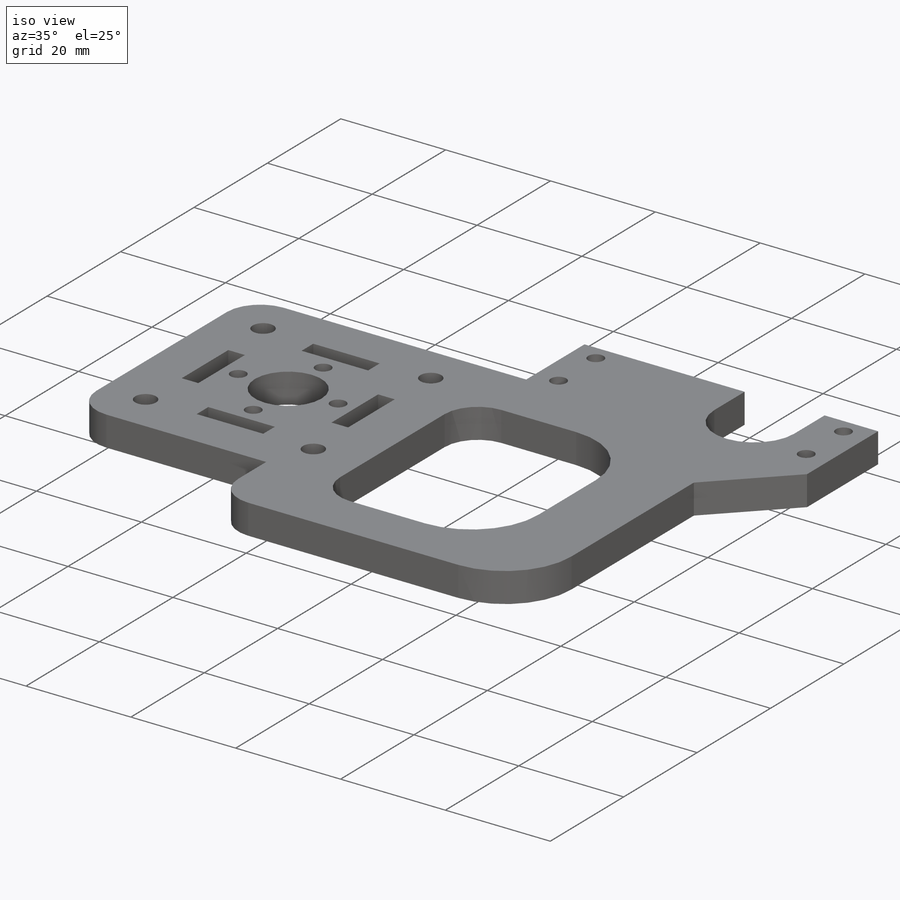
[diagram: iso view]
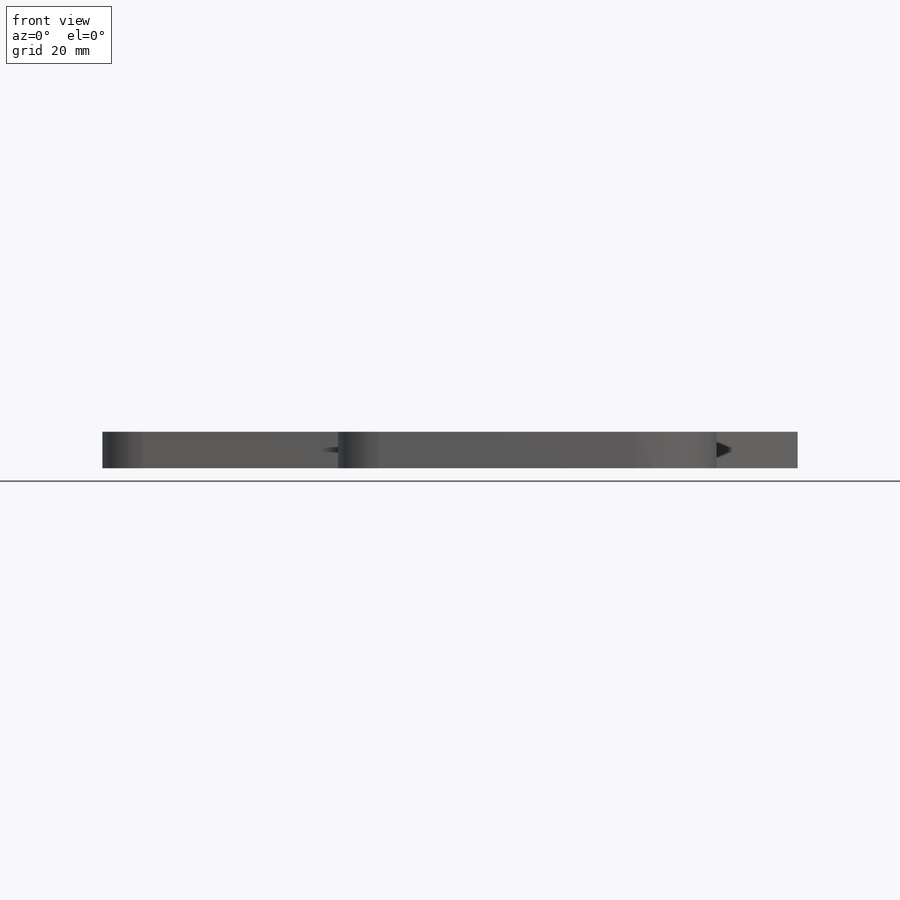
[diagram: front view]
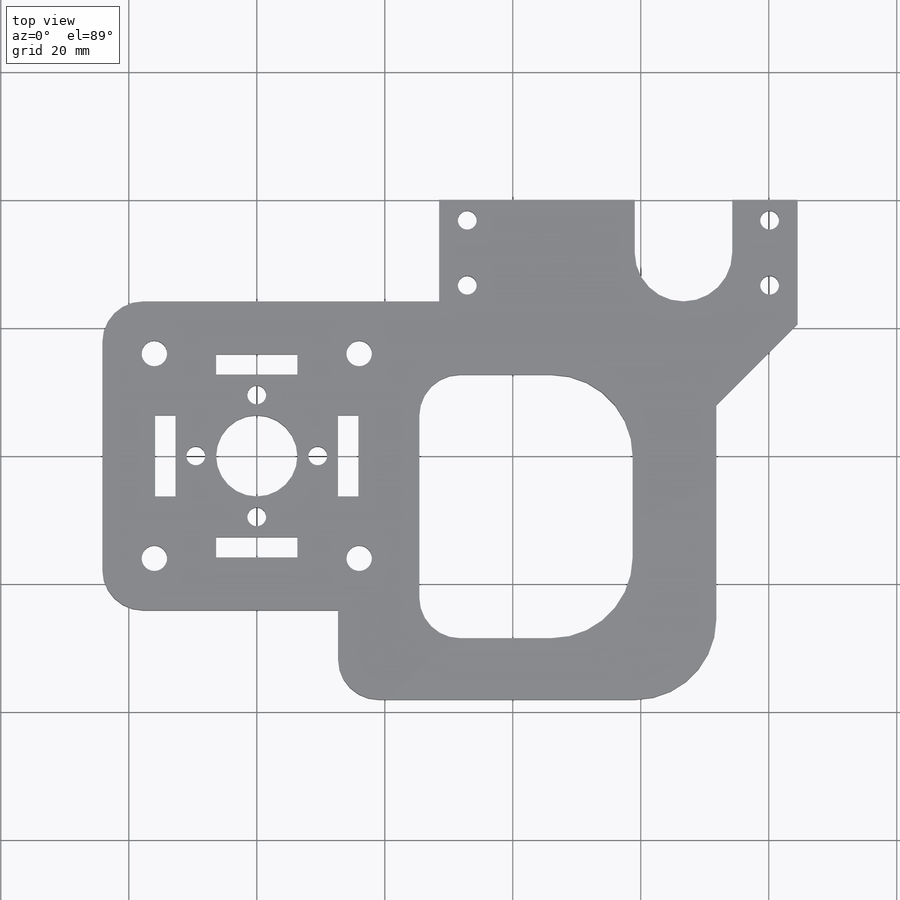
[diagram: top view]
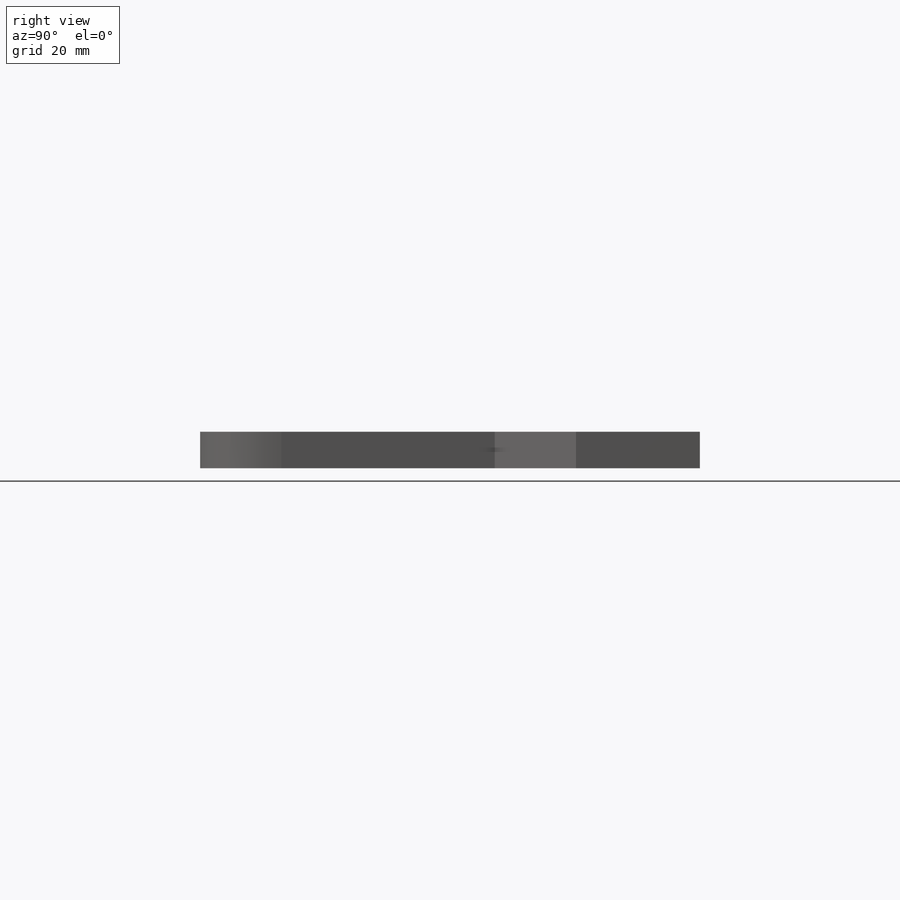
[diagram: right view]
SOLIDWORKS PART (.sldprt)
format: sldprt  version: not decoded by parser v0  size: 411,648 bytes
history: native  units: mm
features: sketch x9, fillet x4, hole x3, cut_extrude x2, material x1, extrude x1, pattern_circular x1 (+12 scaffold rows collapsed)
feature tree (33):
  scaffold x12  (default folders/planes/origin — collapsed)
  material  "Material <not specified>"
  sketch  "Sketch1"  dims[c1.D1=48.26mm c1.D2=~5.706465mm c1.D6=4.3688mm c1.D7=15.24mm c1.D25=4.3688mm c2.D2=~1.533907mm c2.D3=~5.675457mm c3.D2=~26.505917mm c3.D3=~40.127013mm c4.D2=47.244mm c4.D3=10.16mm c4.D4=28.575mm c4.D5=28.575mm c4.D8=13.462mm c4.D9=11.0998mm c4.D10=57.15mm c4.D11=3.175mm c4.D12=3.175mm c4.D13=4.3815mm c4.D14=1.5875mm c4.D15=1.5875mm c4.D16=1.5875mm c4.D17=21.7805mm c4.D18=21.7805mm c5.D11=1.5875mm c5.D19=26.9113mm c5.D15=1.5875mm c5.D20=1.5875mm c6.D15=1.5875mm c6.D21=11.1125mm c6.D20=1.5875mm c6.D22=25.4mm c6.D23=26.9113mm c6.D4=1.5875mm c6.D5=31.75mm c6.D11=66.675mm c6.D24=38.1mm c6.D25=38.1mm c6.D26=1.5875mm c6.D27=1.5875mm c6.D28=12.7mm c7.D26=1.5875mm c7.D27=1.5875mm c7.D28=12.7mm c8.D27=12.7mm c8.D26=12.7mm c9.D26=135.0deg c9.D27=19.3675mm c9.D28=12.7mm c9.D29=24.13mm]
  extrude  "Boss-Extrude1"  Depth=5.6896mm
  fillet  "Fillet1"  Radius=12.7mm
  fillet  "Fillet2"  Radius=6.35mm
  sketch  "Sketch11"  dims[D1=12.7mm]
  cut_extrude  "Cut-Extrude3"  [1 undecoded]
  sketch  "Sketch8"  dims[c1.D1=3.175mm c1.D2=7.9375mm c1.D3=9.525mm c1.D4=14.2875mm c2.D3=19.05mm c2.D1=3.175mm c2.D2=25.4mm c3.D3=12.7mm]
  cut_extrude  "Cut-Extrude2"  [1 undecoded]
  hole  "#4 Clearance Hole3"  Diameter=2.9464mm Depth=5.6906mm
  sketch  "Sketch12"  dims[D1=9.525mm]
  sketch  "Sketch13"  dims[hole-wizard template sketch: 60 standard entries collapsed; hole parameters kept: c18.Thru Hole Depth=5.6906mm]
  pattern_circular  "CirPattern1"  Count=4 Angle=360deg
  fillet  "Fillet3"  Radius=12.7mm
  hole  "#4 Clearance Hole4"  Diameter=2.9464mm Depth=5.6896mm
  sketch  "Sketch15"
  sketch  "Sketch14"  dims[hole-wizard template sketch: 60 standard entries collapsed; hole parameters kept: c18.Thru Hole Depth=5.6896mm]
  hole  "Tap Drill for #4 Helicoil1"  Diameter=3.9878mm Depth=5.6896mm
  sketch  "Sketch17"  dims[c1.D1=~29.955616mm c1.D2=~35.456234mm c2.D1=45.25mm]
  sketch  "Sketch16"  dims[hole-wizard template sketch: 59 standard entries collapsed; hole parameters kept: c18.Thru Hole Dia.=3.9878mm c18.Thru Hole Depth=5.6896mm]
  fillet  "Fillet4"  Radius=6.35mm
decode coverage: 17 of 20 modeling features carry decoded parameters
note: ~ marks probable driven/reference dimensions
note: 2 parameter values undecoded
note: suppression state not decoded; provenance and decode notes live in map.json
